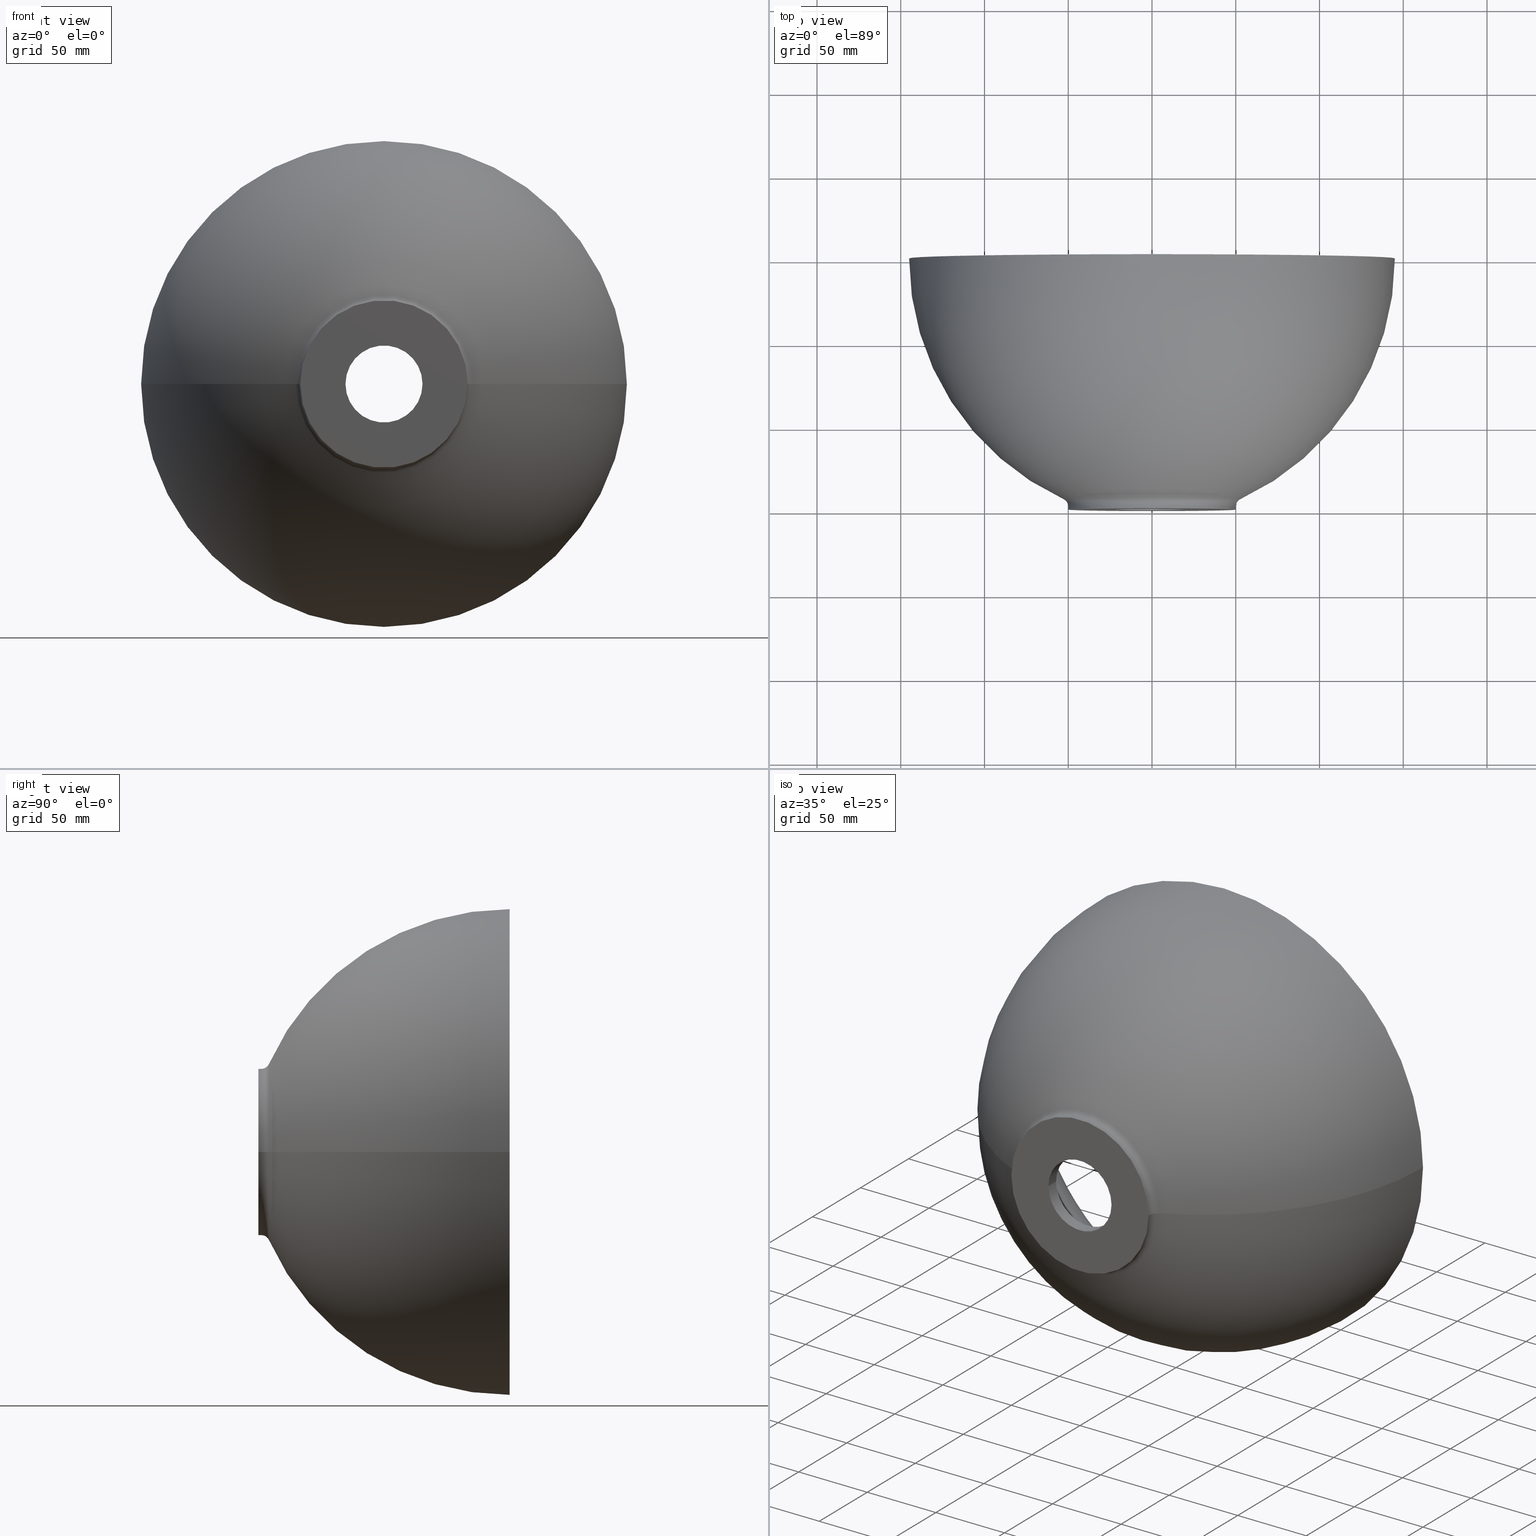
[diagram: canonical four-view strip — front | top / right | iso, engineering-drawing reading convention]
A machine part, canonical four-view strip (front | top / right | iso — engineering-drawing reading convention). The complete STEP part file that produces these views, byte-faithful:
ISO-10303-21;
HEADER;
FILE_DESCRIPTION (( 'STEP AP214' ),
    '1' );
FILE_NAME ('D781-SO.STEP',
    '2018-06-29T09:17:41',
    ( '' ),
    ( '' ),
    'SwSTEP 2.0',
    'SolidWorks 2017',
    '' );
FILE_SCHEMA (( 'AUTOMOTIVE_DESIGN' ));
ENDSEC;

DATA;
#1 = CIRCLE ( 'NONE', #90, 37.30104311104392400 ) ;
#2 = CARTESIAN_POINT ( 'NONE',  ( -52.91129032258071900, 6.303157817668902000, 0.0000000000000000000 ) ) ;
#3 = CARTESIAN_POINT ( 'NONE',  ( 0.0000000000000000000, 126.3523706291405700, 0.0000000000000000000 ) ) ;
#4 = CARTESIAN_POINT ( 'NONE',  ( 0.0000000000000000000, 125.6151732610876800, 0.0000000000000000000 ) ) ;
#5 = CIRCLE ( 'NONE', #396, 128.5377298256254300 ) ;
#6 = DIRECTION ( 'NONE',  ( 0.0000000000000000000, -0.0000000000000000000, -1.000000000000000000 ) ) ;
#7 = DIRECTION ( 'NONE',  ( 0.0000000000000000000, -0.0000000000000000000, -1.000000000000000000 ) ) ;
#8 = DIRECTION ( 'NONE',  ( -1.000000000000000000, -2.159332956423159800E-016, 0.0000000000000000000 ) ) ;
#9 = CARTESIAN_POINT ( 'NONE',  ( 1.387778780781445700E-014, 0.0000000000000000000, 0.0000000000000000000 ) ) ;
#10 = DIRECTION ( 'NONE',  ( -1.104785946437366900E-016, 1.000000000000000000, -0.0000000000000000000 ) ) ;
#11 = DIRECTION ( 'NONE',  ( -1.104785946437366900E-016, 1.000000000000000000, -0.0000000000000000000 ) ) ;
#12 = AXIS2_PLACEMENT_3D ( 'NONE', #9, #66, #36 ) ;
#13 = PRODUCT ( 'D781-SO', 'D781-SO', '', ( #131 ) ) ;
#14 = DIRECTION ( 'NONE',  ( -1.104785946437366900E-016, 1.000000000000000000, -0.0000000000000000000 ) ) ;
#15 = CARTESIAN_POINT ( 'NONE',  ( -128.5377298256254300, 129.9999999999999700, 0.0000000000000000000 ) ) ;
#16 = VERTEX_POINT ( 'NONE', #112 ) ;
#17 = DIRECTION ( 'NONE',  ( -1.224646799147353200E-016, -1.352972573047500600E-032, 1.000000000000000000 ) ) ;
#18 = CIRCLE ( 'NONE', #93, 25.07832101446677700 ) ;
#19 = EDGE_CURVE ( 'NONE', #139, #449, #87, .T. ) ;
#20 = ORIENTED_EDGE ( 'NONE', *, *, #257, .F. ) ;
#21 = EDGE_CURVE ( 'NONE', #50, #16, #403, .T. ) ;
#22 = DIRECTION ( 'NONE',  ( 1.000000000000000000, 1.104785946437366900E-016, 0.0000000000000000000 ) ) ;
#23 = EDGE_CURVE ( 'NONE', #300, #193, #325, .T. ) ;
#24 = CIRCLE ( 'NONE', #335, 23.00000000000003600 ) ;
#25 = ORIENTED_EDGE ( 'NONE', *, *, #341, .T. ) ;
#26 = CARTESIAN_POINT ( 'NONE',  ( -2.694001388746044600E-015, 150.0000000000000000, 0.0000000000000000000 ) ) ;
#27 = EDGE_LOOP ( 'NONE', ( #204, #353, #210, #334 ) ) ;
#28 = EDGE_CURVE ( 'NONE', #122, #203, #45, .T. ) ;
#29 = ADVANCED_FACE ( 'NONE', ( #217 ), #306, .T. ) ;
#30 = DIRECTION ( 'NONE',  ( -1.104785946437366900E-016, 1.000000000000000000, -0.0000000000000000000 ) ) ;
#31 = CARTESIAN_POINT ( 'NONE',  ( -13.15789473684206400, 150.0000000000000000, -1.611377367299143200E-015 ) ) ;
#32 = AXIS2_PLACEMENT_3D ( 'NONE', #360, #187, #303 ) ;
#33 = DIRECTION ( 'NONE',  ( -1.000000000000000000, 0.0000000000000000000, 0.0000000000000000000 ) ) ;
#34 = DIRECTION ( 'NONE',  ( -1.000000000000000000, -1.104785946437366900E-016, 0.0000000000000000000 ) ) ;
#35 = CONICAL_SURFACE ( 'NONE', #174, 23.00000000000003600, 0.8726646259971557700 ) ;
#36 = DIRECTION ( 'NONE',  ( -1.000000000000000000, -1.104785946437366900E-016, 0.0000000000000000000 ) ) ;
#37 = DIRECTION ( 'NONE',  ( -1.104785946437366900E-016, 1.000000000000000000, -0.0000000000000000000 ) ) ;
#38 = DIRECTION ( 'NONE',  ( -1.104785946437366900E-016, 1.000000000000000000, -0.0000000000000000000 ) ) ;
#39 = EDGE_CURVE ( 'NONE', #300, #186, #200, .T. ) ;
#40 = DIRECTION ( 'NONE',  ( -1.224646799147353200E-016, -1.352972573047500600E-032, 1.000000000000000000 ) ) ;
#41 = FACE_OUTER_BOUND ( 'NONE', #27, .T. ) ;
#42 = ORIENTED_EDGE ( 'NONE', *, *, #434, .F. ) ;
#43 = ORIENTED_EDGE ( 'NONE', *, *, #311, .T. ) ;
#44 = AXIS2_PLACEMENT_3D ( 'NONE', #397, #370, #337 ) ;
#45 = CIRCLE ( 'NONE', #197, 128.5377298256254300 ) ;
#46 = CARTESIAN_POINT ( 'NONE',  ( 50.00000000000004300, 1.760329196264057000, 6.123233995736769200E-015 ) ) ;
#47 = CIRCLE ( 'NONE', #12, 50.00000000000000000 ) ;
#48 = TOROIDAL_SURFACE ( 'NONE', #436, -13.15789473684206000, 158.1578947368420800 ) ;
#49 = ORIENTED_EDGE ( 'NONE', *, *, #169, .T. ) ;
#50 = VERTEX_POINT ( 'NONE', #179 ) ;
#51 = ORIENTED_EDGE ( 'NONE', *, *, #445, .T. ) ;
#52 = ADVANCED_FACE ( 'NONE', ( #162 ), #247, .F. ) ;
#53 = EDGE_CURVE ( 'NONE', #246, #278, #406, .T. ) ;
#54 = CIRCLE ( 'NONE', #439, 52.91129032258073300 ) ;
#55 = DIRECTION ( 'NONE',  ( -1.000000000000000000, -1.104785946437366800E-016, 0.0000000000000000000 ) ) ;
#56 = COLOUR_RGB ( '',1.000000000000000000, 1.000000000000000000, 1.000000000000000000 ) ;
#57 = AXIS2_PLACEMENT_3D ( 'NONE', #390, #407, #383 ) ;
#58 = DIRECTION ( 'NONE',  ( -1.000000000000000000, -1.104785946437366800E-016, 0.0000000000000000000 ) ) ;
#59 = EDGE_LOOP ( 'NONE', ( #264, #384, #130, #295 ) ) ;
#60 = CARTESIAN_POINT ( 'NONE',  ( -50.00000000000001400, 125.6151732610876800, 0.0000000000000000000 ) ) ;
#61 = DIRECTION ( 'NONE',  ( -1.104785946437366900E-016, 1.000000000000000000, -0.0000000000000000000 ) ) ;
#62 = DIRECTION ( 'NONE',  ( -1.000000000000000000, -1.147492742834831600E-016, 0.0000000000000000000 ) ) ;
#63 = ADVANCED_FACE ( 'NONE', ( #427 ), #154, .F. ) ;
#64 = CARTESIAN_POINT ( 'NONE',  ( -7.504765230840313900, 150.0000000000000000, -9.190686718300936100E-016 ) ) ;
#65 = CARTESIAN_POINT ( 'NONE',  ( -2.602085213965210600E-015, 150.0000000000000000, 0.0000000000000000000 ) ) ;
#66 = DIRECTION ( 'NONE',  ( -1.104785946437366900E-016, 1.000000000000000000, -0.0000000000000000000 ) ) ;
#67 = DIRECTION ( 'NONE',  ( -1.000000000000000000, 0.0000000000000000000, 0.0000000000000000000 ) ) ;
#68 = VECTOR ( 'NONE', #147, 1000.000000000000000 ) ;
#69 = ORIENTED_EDGE ( 'NONE', *, *, #254, .T. ) ;
#70 = EDGE_CURVE ( 'NONE', #124, #108, #1, .T. ) ;
#71 = ORIENTED_EDGE ( 'NONE', *, *, #169, .F. ) ;
#72 = DIRECTION ( 'NONE',  ( -1.000000000000000000, -1.104785946437366900E-016, 0.0000000000000000000 ) ) ;
#73 = MECHANICAL_DESIGN_GEOMETRIC_PRESENTATION_REPRESENTATION (  '', ( #365 ), #224 ) ;
#74 = DIRECTION ( 'NONE',  ( -1.000000000000000000, 0.0000000000000000000, 0.0000000000000000000 ) ) ;
#75 = CARTESIAN_POINT ( 'NONE',  ( 50.00000000000001400, 125.6151732610876800, 6.123233995736767700E-015 ) ) ;
#76 = DIRECTION ( 'NONE',  ( -1.000000000000000000, -1.104785946437366800E-016, 0.0000000000000000000 ) ) ;
#77 = CIRCLE ( 'NONE', #129, 50.00000000000000000 ) ;
#78 = FILL_AREA_STYLE_COLOUR ( '', #132 ) ;
#79 = CARTESIAN_POINT ( 'NONE',  ( 0.0000000000000000000, 125.6151732610876800, 0.0000000000000000000 ) ) ;
#80 = AXIS2_PLACEMENT_3D ( 'NONE', #151, #171, #145 ) ;
#81 = SHAPE_DEFINITION_REPRESENTATION ( #261, #220 ) ;
#82 = CARTESIAN_POINT ( 'NONE',  ( -23.00000000000001400, -1.153895334038977400E-015, 0.0000000000000000000 ) ) ;
#83 = AXIS2_PLACEMENT_3D ( 'NONE', #398, #267, #33 ) ;
#84 = DIRECTION ( 'NONE',  ( -1.104785946437366900E-016, 1.000000000000000000, -0.0000000000000000000 ) ) ;
#85 = EDGE_CURVE ( 'NONE', #186, #139, #153, .T. ) ;
#86 = FACE_OUTER_BOUND ( 'NONE', #279, .T. ) ;
#87 = CIRCLE ( 'NONE', #329, 145.0000000000000000 ) ;
#88 =( NAMED_UNIT ( * ) SI_UNIT ( $, .STERADIAN. ) SOLID_ANGLE_UNIT ( ) );
#89 = DIRECTION ( 'NONE',  ( 0.7660444431189721300, 0.6427876096865463600, 9.381338752702660500E-017 ) ) ;
#90 = AXIS2_PLACEMENT_3D ( 'NONE', #226, #211, #395 ) ;
#91 = DIRECTION ( 'NONE',  ( 1.104785946437366900E-016, -1.000000000000000000, 0.0000000000000000000 ) ) ;
#92 = ORIENTED_EDGE ( 'NONE', *, *, #19, .F. ) ;
#93 = AXIS2_PLACEMENT_3D ( 'NONE', #163, #161, #157 ) ;
#94 = FACE_BOUND ( 'NONE', #240, .T. ) ;
#95 = VECTOR ( 'NONE', #392, 1000.000000000000100 ) ;
#96 = VERTEX_POINT ( 'NONE', #332 ) ;
#97 = CYLINDRICAL_SURFACE ( 'NONE', #323, 23.00000000000003200 ) ;
#98 =( LENGTH_UNIT ( ) NAMED_UNIT ( * ) SI_UNIT ( .MILLI., .METRE. ) );
#99 = AXIS2_PLACEMENT_3D ( 'NONE', #3, #61, #148 ) ;
#100 = ORIENTED_EDGE ( 'NONE', *, *, #118, .T. ) ;
#101 = CIRCLE ( 'NONE', #457, 23.00000000000002800 ) ;
#102 = CARTESIAN_POINT ( 'NONE',  ( 1.387778780781445700E-014, 0.0000000000000000000, 0.0000000000000000000 ) ) ;
#103 = EDGE_CURVE ( 'NONE', #108, #122, #280, .T. ) ;
#104 = ADVANCED_FACE ( 'NONE', ( #231 ), #35, .F. ) ;
#105 = DIRECTION ( 'NONE',  ( -1.104785946437366900E-016, 1.000000000000000000, -0.0000000000000000000 ) ) ;
#106 = DIRECTION ( 'NONE',  ( -1.104785946437366900E-016, 1.000000000000000000, -0.0000000000000000000 ) ) ;
#107 = VECTOR ( 'NONE', #11, 1000.000000000000000 ) ;
#108 = VERTEX_POINT ( 'NONE', #191 ) ;
#109 = PRODUCT_CONTEXT ( 'NONE', #177, 'mechanical' ) ;
#110 = ORIENTED_EDGE ( 'NONE', *, *, #21, .T. ) ;
#111 = CARTESIAN_POINT ( 'NONE',  ( -23.00000000000002100, 7.999999999999991100, 0.0000000000000000000 ) ) ;
#112 = CARTESIAN_POINT ( 'NONE',  ( 23.00000000000005000, 7.999999999999994700, 2.816687638038917100E-015 ) ) ;
#113 = AXIS2_PLACEMENT_3D ( 'NONE', #82, #91, #22 ) ;
#114 = CARTESIAN_POINT ( 'NONE',  ( 1.166821591494773100E-014, 19.99999999992752100, 0.0000000000000000000 ) ) ;
#115 = FACE_OUTER_BOUND ( 'NONE', #412, .T. ) ;
#116 = DIRECTION ( 'NONE',  ( -1.104785946437366900E-016, 1.000000000000000000, -0.0000000000000000000 ) ) ;
#117 = DIRECTION ( 'NONE',  ( -1.104785946437366900E-016, 1.000000000000000000, -0.0000000000000000000 ) ) ;
#118 = EDGE_CURVE ( 'NONE', #50, #246, #350, .T. ) ;
#119 = DIRECTION ( 'NONE',  ( -1.000000000000000000, -1.104785946437366900E-016, 0.0000000000000000000 ) ) ;
#120 = FILL_AREA_STYLE_COLOUR ( '', #56 ) ;
#121 = TOROIDAL_SURFACE ( 'NONE', #401, -7.504765230840311200, 137.5047652308402900 ) ;
#122 = VERTEX_POINT ( 'NONE', #15 ) ;
#123 = EDGE_LOOP ( 'NONE', ( #386, #175, #49, #391 ) ) ;
#124 = VERTEX_POINT ( 'NONE', #230 ) ;
#125 = CARTESIAN_POINT ( 'NONE',  ( -4.844294958713144800E-016, 130.0000000000000000, 0.0000000000000000000 ) ) ;
#126 = ORIENTED_EDGE ( 'NONE', *, *, #371, .T. ) ;
#127 = APPLICATION_PROTOCOL_DEFINITION ( 'draft international standard', 'automotive_design', 1998, #363 ) ;
#128 = APPLICATION_CONTEXT ( 'automotive_design' ) ;
#129 = AXIS2_PLACEMENT_3D ( 'NONE', #252, #117, #34 ) ;
#130 = ORIENTED_EDGE ( 'NONE', *, *, #378, .F. ) ;
#131 = PRODUCT_CONTEXT ( 'NONE', #363, 'mechanical' ) ;
#132 = COLOUR_RGB ( '',1.000000000000000000, 1.000000000000000000, 1.000000000000000000 ) ;
#133 = ORIENTED_EDGE ( 'NONE', *, *, #70, .F. ) ;
#134 = APPLICATION_PROTOCOL_DEFINITION ( 'draft international standard', 'automotive_design', 1998, #128 ) ;
#135 = AXIS2_PLACEMENT_3D ( 'NONE', #196, #455, #183 ) ;
#136 = DIRECTION ( 'NONE',  ( -1.104785946437366900E-016, 1.000000000000000000, -0.0000000000000000000 ) ) ;
#137 = CIRCLE ( 'NONE', #448, 137.5047652308402900 ) ;
#138 = EDGE_LOOP ( 'NONE', ( #180, #331, #423, #314 ) ) ;
#139 = VERTEX_POINT ( 'NONE', #358 ) ;
#140 = CARTESIAN_POINT ( 'NONE',  ( 0.0000000000000000000, 126.3523706291405700, 0.0000000000000000000 ) ) ;
#141 = ADVANCED_FACE ( 'NONE', ( #359 ), #271, .T. ) ;
#142 = DIRECTION ( 'NONE',  ( -1.104785946437366900E-016, 1.000000000000000000, -0.0000000000000000000 ) ) ;
#143 = TOROIDAL_SURFACE ( 'NONE', #422, -7.504765230840311200, 137.5047652308402900 ) ;
#144 = AXIS2_PLACEMENT_3D ( 'NONE', #272, #302, #119 ) ;
#145 = DIRECTION ( 'NONE',  ( -1.000000000000000000, -7.542275982507844800E-017, 0.0000000000000000000 ) ) ;
#146 = EDGE_LOOP ( 'NONE', ( #387, #262, #330, #71 ) ) ;
#147 = DIRECTION ( 'NONE',  ( -1.104785946437366900E-016, 1.000000000000000000, -0.0000000000000000000 ) ) ;
#148 = DIRECTION ( 'NONE',  ( -1.000000000000000000, -1.104785946437366900E-016, 0.0000000000000000000 ) ) ;
#149 = CARTESIAN_POINT ( 'NONE',  ( 1.368330911210086600E-014, 1.760329196264051700, 0.0000000000000000000 ) ) ;
#150 = PRODUCT_DEFINITION_CONTEXT ( 'detailed design', #128, 'design' ) ;
#151 = CARTESIAN_POINT ( 'NONE',  ( 1.299395905066456400E-014, 7.999999999999992900, 0.0000000000000000000 ) ) ;
#152 = DIRECTION ( 'NONE',  ( -1.000000000000000000, -1.104785946437366900E-016, 0.0000000000000000000 ) ) ;
#153 = CIRCLE ( 'NONE', #44, 158.1578947368420800 ) ;
#154 = CYLINDRICAL_SURFACE ( 'NONE', #276, 23.00000000000003200 ) ;
#155 = DIRECTION ( 'NONE',  ( -1.104785946437366900E-016, 1.000000000000000000, -0.0000000000000000000 ) ) ;
#156 = CARTESIAN_POINT ( 'NONE',  ( 23.00000000000005000, 7.999999999999994700, 2.816687638038916700E-015 ) ) ;
#157 = DIRECTION ( 'NONE',  ( 1.000000000000000000, 0.0000000000000000000, 1.224646799147352000E-016 ) ) ;
#158 = DIRECTION ( 'NONE',  ( -1.104785946437366900E-016, 1.000000000000000000, -0.0000000000000000000 ) ) ;
#159 = CIRCLE ( 'NONE', #57, 145.0000000000000000 ) ;
#160 = VERTEX_POINT ( 'NONE', #452 ) ;
#161 = DIRECTION ( 'NONE',  ( -1.224646799147353200E-016, -1.352972573047500600E-032, 1.000000000000000000 ) ) ;
#162 = FACE_OUTER_BOUND ( 'NONE', #123, .T. ) ;
#163 = CARTESIAN_POINT ( 'NONE',  ( 153.3493598582832400, 126.3523706291405900, 1.877988027017421900E-014 ) ) ;
#164 = AXIS2_PLACEMENT_3D ( 'NONE', #216, #158, #369 ) ;
#165 = AXIS2_PLACEMENT_3D ( 'NONE', #355, #209, #454 ) ;
#166 = AXIS2_PLACEMENT_3D ( 'NONE', #223, #6, #421 ) ;
#167 = ORIENTED_EDGE ( 'NONE', *, *, #319, .F. ) ;
#168 = ORIENTED_EDGE ( 'NONE', *, *, #103, .T. ) ;
#169 = EDGE_CURVE ( 'NONE', #278, #108, #379, .T. ) ;
#170 = PRODUCT_DEFINITION_CONTEXT ( 'detailed design', #260, 'design' ) ;
#171 = DIRECTION ( 'NONE',  ( -1.104785946437366900E-016, 1.000000000000000000, -0.0000000000000000000 ) ) ;
#172 = CARTESIAN_POINT ( 'NONE',  ( 1.299395905066456400E-014, 7.999999999999992900, 0.0000000000000000000 ) ) ;
#173 = ORIENTED_EDGE ( 'NONE', *, *, #202, .T. ) ;
#174 = AXIS2_PLACEMENT_3D ( 'NONE', #286, #380, #367 ) ;
#175 = ORIENTED_EDGE ( 'NONE', *, *, #445, .F. ) ;
#176 = TOROIDAL_SURFACE ( 'NONE', #440, -13.15789473684206000, 158.1578947368420800 ) ;
#177 = APPLICATION_CONTEXT ( 'automotive_design' ) ;
#178 = ADVANCED_FACE ( 'NONE', ( #348 ), #242, .F. ) ;
#179 = CARTESIAN_POINT ( 'NONE',  ( 23.00000000000004300, 2.541007676805946200E-015, 2.816687638038916300E-015 ) ) ;
#180 = ORIENTED_EDGE ( 'NONE', *, *, #182, .F. ) ;
#181 = CARTESIAN_POINT ( 'NONE',  ( 0.0000000000000000000, 125.6151732610876800, 0.0000000000000000000 ) ) ;
#182 = EDGE_CURVE ( 'NONE', #300, #449, #428, .T. ) ;
#183 = DIRECTION ( 'NONE',  ( -1.000000000000000000, -7.542275982507844800E-017, 0.0000000000000000000 ) ) ;
#184 = CARTESIAN_POINT ( 'NONE',  ( -4.844294958713144800E-016, 130.0000000000000000, 0.0000000000000000000 ) ) ;
#185 = ORIENTED_EDGE ( 'NONE', *, *, #430, .T. ) ;
#186 = VERTEX_POINT ( 'NONE', #2 ) ;
#187 = DIRECTION ( 'NONE',  ( -1.224646799147353200E-016, -1.352972573047500600E-032, 1.000000000000000000 ) ) ;
#188 = DIRECTION ( 'NONE',  ( -1.000000000000000000, -1.914177628664062900E-016, 0.0000000000000000000 ) ) ;
#189 = PRODUCT_RELATED_PRODUCT_CATEGORY ( 'part', '', ( #13 ) ) ;
#190 = EDGE_CURVE ( 'NONE', #108, #124, #250, .T. ) ;
#191 = CARTESIAN_POINT ( 'NONE',  ( -37.30104311104390300, 19.99999999992751800, 0.0000000000000000000 ) ) ;
#192 = SURFACE_STYLE_FILL_AREA ( #394 ) ;
#193 = VERTEX_POINT ( 'NONE', #46 ) ;
#194 = CARTESIAN_POINT ( 'NONE',  ( 1.387778780781445700E-014, 1.760329196264053300, 0.0000000000000000000 ) ) ;
#195 = EDGE_LOOP ( 'NONE', ( #343, #313, #399, #426 ) ) ;
#196 = CARTESIAN_POINT ( 'NONE',  ( 1.299395905066456400E-014, 7.999999999999992900, 0.0000000000000000000 ) ) ;
#197 = AXIS2_PLACEMENT_3D ( 'NONE', #184, #37, #8 ) ;
#198 = DIRECTION ( 'NONE',  ( 0.0000000000000000000, 0.0000000000000000000, 1.000000000000000000 ) ) ;
#199 = PRODUCT_DEFINITION_FORMATION_WITH_SPECIFIED_SOURCE ( 'ANY', '', #13, .NOT_KNOWN. ) ;
#200 = CIRCLE ( 'NONE', #164, 52.91129032258073300 ) ;
#201 = PRODUCT_RELATED_PRODUCT_CATEGORY ( 'part', '', ( #324 ) ) ;
#202 = EDGE_CURVE ( 'NONE', #139, #122, #336, .T. ) ;
#203 = VERTEX_POINT ( 'NONE', #419 ) ;
#204 = ORIENTED_EDGE ( 'NONE', *, *, #19, .T. ) ;
#205 = PLANE ( 'NONE',  #113 ) ;
#206 = PRODUCT_DEFINITION_FORMATION_WITH_SPECIFIED_SOURCE ( 'ANY', '', #324, .NOT_KNOWN. ) ;
#207 = AXIS2_PLACEMENT_3D ( 'NONE', #31, #17, #214 ) ;
#208 = EDGE_LOOP ( 'NONE', ( #263, #69, #126, #42 ) ) ;
#209 = DIRECTION ( 'NONE',  ( -1.104785946437366900E-016, 1.000000000000000000, -0.0000000000000000000 ) ) ;
#210 = ORIENTED_EDGE ( 'NONE', *, *, #28, .F. ) ;
#211 = DIRECTION ( 'NONE',  ( -1.104785946437366900E-016, 1.000000000000000000, -0.0000000000000000000 ) ) ;
#212 = ORIENTED_EDGE ( 'NONE', *, *, #257, .T. ) ;
#213 = EDGE_CURVE ( 'NONE', #266, #96, #77, .T. ) ;
#214 = DIRECTION ( 'NONE',  ( 1.000000000000000000, 0.0000000000000000000, 1.224646799147353200E-016 ) ) ;
#215 = CARTESIAN_POINT ( 'NONE',  ( 145.0000000000000000, 150.0000000000000300, 1.775737858763661900E-014 ) ) ;
#216 = CARTESIAN_POINT ( 'NONE',  ( 1.318142379030071500E-014, 6.303157817668908300, 0.0000000000000000000 ) ) ;
#217 = FACE_OUTER_BOUND ( 'NONE', #283, .T. ) ;
#218 = ORIENTED_EDGE ( 'NONE', *, *, #437, .T. ) ;
#219 = ADVANCED_FACE ( 'NONE', ( #429 ), #176, .T. ) ;
#220 = ADVANCED_BREP_SHAPE_REPRESENTATION ( 'D781-SO', ( #388, #248 ), #342 ) ;
#221 = EDGE_CURVE ( 'NONE', #186, #160, #222, .T. ) ;
#222 = CIRCLE ( 'NONE', #282, 5.000000000000004400 ) ;
#223 = CARTESIAN_POINT ( 'NONE',  ( 7.504765230840308600, 150.0000000000000000, 0.0000000000000000000 ) ) ;
#224 =( GEOMETRIC_REPRESENTATION_CONTEXT ( 3 ) GLOBAL_UNCERTAINTY_ASSIGNED_CONTEXT ( ( #373 ) ) GLOBAL_UNIT_ASSIGNED_CONTEXT ( ( #416, #447, #441 ) ) REPRESENTATION_CONTEXT ( 'NONE', 'WORKASPACE' ) );
#225 = DIRECTION ( 'NONE',  ( -1.104785946437366900E-016, 1.000000000000000000, -0.0000000000000000000 ) ) ;
#226 = CARTESIAN_POINT ( 'NONE',  ( 1.166821591494773100E-014, 19.99999999992752100, 0.0000000000000000000 ) ) ;
#227 = CARTESIAN_POINT ( 'NONE',  ( -23.00000000000001400, -2.541007676805946600E-015, 0.0000000000000000000 ) ) ;
#228 = DIRECTION ( 'NONE',  ( -1.000000000000000000, -2.159332956423159800E-016, 0.0000000000000000000 ) ) ;
#229 = ORIENTED_EDGE ( 'NONE', *, *, #341, .F. ) ;
#230 = CARTESIAN_POINT ( 'NONE',  ( 37.30104311104393800, 19.99999999992752500, 4.568060305079736700E-015 ) ) ;
#231 = FACE_OUTER_BOUND ( 'NONE', #146, .T. ) ;
#232 = DIRECTION ( 'NONE',  ( -1.000000000000000000, -1.104785946437366800E-016, 0.0000000000000000000 ) ) ;
#233 = DIRECTION ( 'NONE',  ( 1.000000000000000000, 0.0000000000000000000, 0.0000000000000000000 ) ) ;
#234 = FACE_OUTER_BOUND ( 'NONE', #312, .T. ) ;
#235 = EDGE_CURVE ( 'NONE', #16, #124, #258, .T. ) ;
#236 = PRODUCT_DEFINITION ( 'UNKNOWN', '', #206, #150 ) ;
#237 = DIRECTION ( 'NONE',  ( -1.104785946437366900E-016, 1.000000000000000000, -0.0000000000000000000 ) ) ;
#238 = ORIENTED_EDGE ( 'NONE', *, *, #85, .F. ) ;
#239 = EDGE_LOOP ( 'NONE', ( #328, #304, #444, #317 ) ) ;
#240 = EDGE_LOOP ( 'NONE', ( #25, #100 ) ) ;
#241 = ORIENTED_EDGE ( 'NONE', *, *, #254, .F. ) ;
#242 = TOROIDAL_SURFACE ( 'NONE', #144, 55.00000000000002800, 5.000000000000002700 ) ;
#243 = ADVANCED_FACE ( 'NONE', ( #409 ), #346, .T. ) ;
#244 = FILL_AREA_STYLE ('',( #120 ) ) ;
#245 = AXIS2_PLACEMENT_3D ( 'NONE', #79, #237, #74 ) ;
#246 = VERTEX_POINT ( 'NONE', #227 ) ;
#247 = CONICAL_SURFACE ( 'NONE', #135, 23.00000000000003600, 0.8726646259971557700 ) ;
#248 = AXIS2_PLACEMENT_3D ( 'NONE', #296, #309, #320 ) ;
#249 = PRESENTATION_STYLE_ASSIGNMENT (( #297 ) ) ;
#250 = CIRCLE ( 'NONE', #375, 37.30104311104392400 ) ;
#251 = DIRECTION ( 'NONE',  ( -1.000000000000000000, -7.542275982507844800E-017, 0.0000000000000000000 ) ) ;
#252 = CARTESIAN_POINT ( 'NONE',  ( 1.387778780781445700E-014, 0.0000000000000000000, 0.0000000000000000000 ) ) ;
#253 = DIRECTION ( 'NONE',  ( -1.104785946437366900E-016, 1.000000000000000000, -0.0000000000000000000 ) ) ;
#254 = EDGE_CURVE ( 'NONE', #96, #266, #47, .T. ) ;
#255 = FACE_OUTER_BOUND ( 'NONE', #195, .T. ) ;
#256 = AXIS2_PLACEMENT_3D ( 'NONE', #381, #198, #233 ) ;
#257 = EDGE_CURVE ( 'NONE', #203, #122, #5, .T. ) ;
#258 = LINE ( 'NONE', #156, #349 ) ;
#259 = CARTESIAN_POINT ( 'NONE',  ( 1.387778780781445700E-014, 0.0000000000000000000, 0.0000000000000000000 ) ) ;
#260 = APPLICATION_CONTEXT ( 'automotive_design' ) ;
#261 = PRODUCT_DEFINITION_SHAPE ( 'NONE', 'NONE',  #275 ) ;
#262 = ORIENTED_EDGE ( 'NONE', *, *, #235, .T. ) ;
#263 = ORIENTED_EDGE ( 'NONE', *, *, #362, .F. ) ;
#264 = ORIENTED_EDGE ( 'NONE', *, *, #213, .T. ) ;
#265 = DIRECTION ( 'NONE',  ( -1.000000000000000000, -1.104785946437366800E-016, 0.0000000000000000000 ) ) ;
#266 = VERTEX_POINT ( 'NONE', #339 ) ;
#267 = DIRECTION ( 'NONE',  ( 0.0000000000000000000, -0.0000000000000000000, -1.000000000000000000 ) ) ;
#268 = DIRECTION ( 'NONE',  ( -1.104785946437366900E-016, 1.000000000000000000, -0.0000000000000000000 ) ) ;
#269 = CARTESIAN_POINT ( 'NONE',  ( 23.00000000000003200, 125.6151732610876800, 2.816687638038916300E-015 ) ) ;
#270 = CIRCLE ( 'NONE', #410, 50.00000000000002100 ) ;
#271 = CYLINDRICAL_SURFACE ( 'NONE', #308, 50.00000000000001400 ) ;
#272 = CARTESIAN_POINT ( 'NONE',  ( 1.387778780781445700E-014, 1.760329196264053300, 0.0000000000000000000 ) ) ;
#273 = PRODUCT_DEFINITION_SHAPE ( 'NONE', 'NONE',  #236 ) ;
#274 = EDGE_CURVE ( 'NONE', #124, #203, #137, .T. ) ;
#275 = PRODUCT_DEFINITION ( 'UNKNOWN', '', #199, #170 ) ;
#276 = AXIS2_PLACEMENT_3D ( 'NONE', #4, #290, #333 ) ;
#277 = LINE ( 'NONE', #75, #68 ) ;
#278 = VERTEX_POINT ( 'NONE', #111 ) ;
#279 = EDGE_LOOP ( 'NONE', ( #185, #418, #92, #238 ) ) ;
#280 = CIRCLE ( 'NONE', #166, 137.5047652308402900 ) ;
#281 = CARTESIAN_POINT ( 'NONE',  ( -3.469446951953614200E-015, 150.0000000000000000, 0.0000000000000000000 ) ) ;
#282 = AXIS2_PLACEMENT_3D ( 'NONE', #344, #7, #361 ) ;
#283 = EDGE_LOOP ( 'NONE', ( #167, #218, #173, #20 ) ) ;
#284 = EDGE_LOOP ( 'NONE', ( #133, #289, #212, #456 ) ) ;
#285 =( GEOMETRIC_REPRESENTATION_CONTEXT ( 3 ) GLOBAL_UNCERTAINTY_ASSIGNED_CONTEXT ( ( #292 ) ) GLOBAL_UNIT_ASSIGNED_CONTEXT ( ( #293, #291, #288 ) ) REPRESENTATION_CONTEXT ( 'NONE', 'WORKASPACE' ) );
#286 = CARTESIAN_POINT ( 'NONE',  ( 1.299395905066456400E-014, 7.999999999999992900, 0.0000000000000000000 ) ) ;
#287 = TOROIDAL_SURFACE ( 'NONE', #374, 55.00000000000002800, 5.000000000000002700 ) ;
#288 =( NAMED_UNIT ( * ) SI_UNIT ( $, .STERADIAN. ) SOLID_ANGLE_UNIT ( ) );
#289 = ORIENTED_EDGE ( 'NONE', *, *, #274, .T. ) ;
#290 = DIRECTION ( 'NONE',  ( -1.104785946437366900E-016, 1.000000000000000000, -0.0000000000000000000 ) ) ;
#291 =( NAMED_UNIT ( * ) PLANE_ANGLE_UNIT ( ) SI_UNIT ( $, .RADIAN. ) );
#292 = UNCERTAINTY_MEASURE_WITH_UNIT (LENGTH_MEASURE( 1.000000000000000100E-005 ), #293, 'distance_accuracy_value', 'NONE');
#293 =( LENGTH_UNIT ( ) NAMED_UNIT ( * ) SI_UNIT ( .MILLI., .METRE. ) );
#294 = TOROIDAL_SURFACE ( 'NONE', #351, 153.3493598582832400, 25.07832101446676300 ) ;
#295 = ORIENTED_EDGE ( 'NONE', *, *, #371, .F. ) ;
#296 = CARTESIAN_POINT ( 'NONE',  ( 0.0000000000000000000, 0.0000000000000000000, 0.0000000000000000000 ) ) ;
#297 = SURFACE_STYLE_USAGE ( .BOTH. , #298 ) ;
#298 = SURFACE_SIDE_STYLE ('',( #446 ) ) ;
#299 = MECHANICAL_DESIGN_GEOMETRIC_PRESENTATION_REPRESENTATION (  '', ( #310 ), #285 ) ;
#300 = VERTEX_POINT ( 'NONE', #385 ) ;
#301 = ORIENTED_EDGE ( 'NONE', *, *, #190, .F. ) ;
#302 = DIRECTION ( 'NONE',  ( -1.104785946437366900E-016, 1.000000000000000000, -0.0000000000000000000 ) ) ;
#303 = DIRECTION ( 'NONE',  ( 1.000000000000000000, 0.0000000000000000000, 1.224646799147352500E-016 ) ) ;
#304 = ORIENTED_EDGE ( 'NONE', *, *, #430, .F. ) ;
#305 = APPLICATION_PROTOCOL_DEFINITION ( 'draft international standard', 'automotive_design', 1998, #177 ) ;
#306 = TOROIDAL_SURFACE ( 'NONE', #99, 153.3493598582832400, 25.07832101446676300 ) ;
#307 = PRESENTATION_LAYER_ASSIGNMENT (  '', '', ( #310 ) ) ;
#308 = AXIS2_PLACEMENT_3D ( 'NONE', #181, #431, #451 ) ;
#309 = DIRECTION ( 'NONE',  ( 0.0000000000000000000, 0.0000000000000000000, 1.000000000000000000 ) ) ;
#310 = STYLED_ITEM ( 'NONE', ( #249 ), #220 ) ;
#311 = EDGE_CURVE ( 'NONE', #16, #278, #376, .T. ) ;
#312 = EDGE_LOOP ( 'NONE', ( #415, #241 ) ) ;
#313 = ORIENTED_EDGE ( 'NONE', *, *, #23, .T. ) ;
#314 = ORIENTED_EDGE ( 'NONE', *, *, #437, .F. ) ;
#315 = FACE_OUTER_BOUND ( 'NONE', #284, .T. ) ;
#316 =( NAMED_UNIT ( * ) PLANE_ANGLE_UNIT ( ) SI_UNIT ( $, .RADIAN. ) );
#317 = ORIENTED_EDGE ( 'NONE', *, *, #378, .T. ) ;
#318 = ADVANCED_FACE ( 'NONE', ( #94, #234 ), #205, .T. ) ;
#319 = EDGE_CURVE ( 'NONE', #449, #203, #18, .T. ) ;
#320 = DIRECTION ( 'NONE',  ( 1.000000000000000000, 0.0000000000000000000, 0.0000000000000000000 ) ) ;
#321 = EDGE_LOOP ( 'NONE', ( #372, #301, #168, #400 ) ) ;
#322 = CARTESIAN_POINT ( 'NONE',  ( -23.00000000000003200, 125.6151732610876800, 0.0000000000000000000 ) ) ;
#323 = AXIS2_PLACEMENT_3D ( 'NONE', #347, #116, #67 ) ;
#324 = PRODUCT ( 'D781-SO', 'D781-SO', '', ( #109 ) ) ;
#325 = CIRCLE ( 'NONE', #32, 5.000000000000004400 ) ;
#326 = ADVANCED_FACE ( 'NONE', ( #255 ), #287, .F. ) ;
#327 = ORIENTED_EDGE ( 'NONE', *, *, #53, .T. ) ;
#328 = ORIENTED_EDGE ( 'NONE', *, *, #23, .F. ) ;
#329 = AXIS2_PLACEMENT_3D ( 'NONE', #26, #30, #188 ) ;
#330 = ORIENTED_EDGE ( 'NONE', *, *, #70, .T. ) ;
#331 = ORIENTED_EDGE ( 'NONE', *, *, #39, .T. ) ;
#332 = CARTESIAN_POINT ( 'NONE',  ( 50.00000000000001400, 5.523929732186834300E-015, 6.123233995736766900E-015 ) ) ;
#333 = DIRECTION ( 'NONE',  ( -1.000000000000000000, 0.0000000000000000000, 0.0000000000000000000 ) ) ;
#334 = ORIENTED_EDGE ( 'NONE', *, *, #202, .F. ) ;
#335 = AXIS2_PLACEMENT_3D ( 'NONE', #172, #136, #251 ) ;
#336 = CIRCLE ( 'NONE', #83, 25.07832101446677700 ) ;
#337 = DIRECTION ( 'NONE',  ( -1.000000000000000000, 0.0000000000000000000, 0.0000000000000000000 ) ) ;
#338 = CIRCLE ( 'NONE', #165, 50.00000000000002100 ) ;
#339 = CARTESIAN_POINT ( 'NONE',  ( -49.99999999999998600, -5.523929732186834300E-015, 0.0000000000000000000 ) ) ;
#340 = ADVANCED_FACE ( 'NONE', ( #41 ), #294, .T. ) ;
#341 = EDGE_CURVE ( 'NONE', #246, #50, #101, .T. ) ;
#342 =( GEOMETRIC_REPRESENTATION_CONTEXT ( 3 ) GLOBAL_UNCERTAINTY_ASSIGNED_CONTEXT ( ( #368 ) ) GLOBAL_UNIT_ASSIGNED_CONTEXT ( ( #98, #316, #88 ) ) REPRESENTATION_CONTEXT ( 'NONE', 'WORKASPACE' ) );
#343 = ORIENTED_EDGE ( 'NONE', *, *, #39, .F. ) ;
#344 = CARTESIAN_POINT ( 'NONE',  ( -55.00000000000001400, 1.760329196264047300, 0.0000000000000000000 ) ) ;
#345 = ADVANCED_FACE ( 'NONE', ( #315 ), #143, .F. ) ;
#346 = CYLINDRICAL_SURFACE ( 'NONE', #245, 50.00000000000001400 ) ;
#347 = CARTESIAN_POINT ( 'NONE',  ( 0.0000000000000000000, 125.6151732610876800, 0.0000000000000000000 ) ) ;
#348 = FACE_OUTER_BOUND ( 'NONE', #239, .T. ) ;
#349 = VECTOR ( 'NONE', #89, 1000.000000000000000 ) ;
#350 = CIRCLE ( 'NONE', #382, 23.00000000000002800 ) ;
#351 = AXIS2_PLACEMENT_3D ( 'NONE', #140, #225, #72 ) ;
#352 = DIRECTION ( 'NONE',  ( -1.000000000000000000, -1.084202172485503900E-016, 0.0000000000000000000 ) ) ;
#353 = ORIENTED_EDGE ( 'NONE', *, *, #319, .T. ) ;
#354 = APPLICATION_PROTOCOL_DEFINITION ( 'draft international standard', 'automotive_design', 1998, #260 ) ;
#355 = CARTESIAN_POINT ( 'NONE',  ( 1.368330911210086600E-014, 1.760329196264051700, 0.0000000000000000000 ) ) ;
#356 = DIRECTION ( 'NONE',  ( -1.104785946437366900E-016, 1.000000000000000000, -0.0000000000000000000 ) ) ;
#357 = CARTESIAN_POINT ( 'NONE',  ( 1.318142379030071500E-014, 6.303157817668908300, 0.0000000000000000000 ) ) ;
#358 = CARTESIAN_POINT ( 'NONE',  ( -145.0000000000000000, 149.9999999999999700, 0.0000000000000000000 ) ) ;
#359 = FACE_OUTER_BOUND ( 'NONE', #59, .T. ) ;
#360 = CARTESIAN_POINT ( 'NONE',  ( 55.00000000000004300, 1.760329196264059500, 6.735557395310446600E-015 ) ) ;
#361 = DIRECTION ( 'NONE',  ( -1.000000000000000000, 0.0000000000000000000, 0.0000000000000000000 ) ) ;
#362 = EDGE_CURVE ( 'NONE', #96, #193, #277, .T. ) ;
#363 = APPLICATION_CONTEXT ( 'automotive_design' ) ;
#364 = ORIENTED_EDGE ( 'NONE', *, *, #53, .F. ) ;
#365 = STYLED_ITEM ( 'NONE', ( #402 ), #388 ) ;
#366 = EDGE_LOOP ( 'NONE', ( #393, #229, #327, #51 ) ) ;
#367 = DIRECTION ( 'NONE',  ( -1.000000000000000000, -7.542275982507844800E-017, 0.0000000000000000000 ) ) ;
#368 = UNCERTAINTY_MEASURE_WITH_UNIT (LENGTH_MEASURE( 1.000000000000000100E-005 ), #98, 'distance_accuracy_value', 'NONE');
#369 = DIRECTION ( 'NONE',  ( -1.000000000000000000, -1.147492742834831600E-016, 0.0000000000000000000 ) ) ;
#370 = DIRECTION ( 'NONE',  ( 0.0000000000000000000, -0.0000000000000000000, -1.000000000000000000 ) ) ;
#371 = EDGE_CURVE ( 'NONE', #266, #160, #443, .T. ) ;
#372 = ORIENTED_EDGE ( 'NONE', *, *, #274, .F. ) ;
#373 = UNCERTAINTY_MEASURE_WITH_UNIT (LENGTH_MEASURE( 1.000000000000000100E-005 ), #416, 'distance_accuracy_value', 'NONE');
#374 = AXIS2_PLACEMENT_3D ( 'NONE', #194, #453, #152 ) ;
#375 = AXIS2_PLACEMENT_3D ( 'NONE', #114, #105, #432 ) ;
#376 = CIRCLE ( 'NONE', #80, 23.00000000000003600 ) ;
#377 = ADVANCED_FACE ( 'NONE', ( #86 ), #48, .T. ) ;
#378 = EDGE_CURVE ( 'NONE', #160, #193, #338, .T. ) ;
#379 = LINE ( 'NONE', #435, #95 ) ;
#380 = DIRECTION ( 'NONE',  ( -1.104785946437366900E-016, 1.000000000000000000, -0.0000000000000000000 ) ) ;
#381 = CARTESIAN_POINT ( 'NONE',  ( 0.0000000000000000000, 0.0000000000000000000, 0.0000000000000000000 ) ) ;
#382 = AXIS2_PLACEMENT_3D ( 'NONE', #259, #155, #76 ) ;
#383 = DIRECTION ( 'NONE',  ( -1.000000000000000000, -1.914177628664062900E-016, 0.0000000000000000000 ) ) ;
#384 = ORIENTED_EDGE ( 'NONE', *, *, #362, .T. ) ;
#385 = CARTESIAN_POINT ( 'NONE',  ( 52.91129032258075400, 6.303157817668914500, 1.211857141043355500E-014 ) ) ;
#386 = ORIENTED_EDGE ( 'NONE', *, *, #235, .F. ) ;
#387 = ORIENTED_EDGE ( 'NONE', *, *, #311, .F. ) ;
#388 = MANIFOLD_SOLID_BREP ( 'Rotation1', #438 ) ;
#389 = CARTESIAN_POINT ( 'NONE',  ( -3.469446951953614200E-015, 150.0000000000000000, 0.0000000000000000000 ) ) ;
#390 = CARTESIAN_POINT ( 'NONE',  ( -2.694001388746044600E-015, 150.0000000000000000, 0.0000000000000000000 ) ) ;
#391 = ORIENTED_EDGE ( 'NONE', *, *, #190, .T. ) ;
#392 = DIRECTION ( 'NONE',  ( -0.7660444431189722400, 0.6427876096865460200, 0.0000000000000000000 ) ) ;
#393 = ORIENTED_EDGE ( 'NONE', *, *, #21, .F. ) ;
#394 = FILL_AREA_STYLE ('',( #78 ) ) ;
#395 = DIRECTION ( 'NONE',  ( -1.000000000000000000, -9.301206246766852900E-017, 0.0000000000000000000 ) ) ;
#396 = AXIS2_PLACEMENT_3D ( 'NONE', #125, #38, #228 ) ;
#397 = CARTESIAN_POINT ( 'NONE',  ( 13.15789473684205600, 150.0000000000000000, 0.0000000000000000000 ) ) ;
#398 = CARTESIAN_POINT ( 'NONE',  ( -153.3493598582832400, 126.3523706291405400, 0.0000000000000000000 ) ) ;
#399 = ORIENTED_EDGE ( 'NONE', *, *, #434, .T. ) ;
#400 = ORIENTED_EDGE ( 'NONE', *, *, #28, .T. ) ;
#401 = AXIS2_PLACEMENT_3D ( 'NONE', #420, #253, #411 ) ;
#402 = PRESENTATION_STYLE_ASSIGNMENT (( #414 ) ) ;
#403 = LINE ( 'NONE', #269, #404 ) ;
#404 = VECTOR ( 'NONE', #268, 1000.000000000000000 ) ;
#405 = DIRECTION ( 'NONE',  ( 1.000000000000000000, 0.0000000000000000000, 1.224646799147353200E-016 ) ) ;
#406 = LINE ( 'NONE', #322, #107 ) ;
#407 = DIRECTION ( 'NONE',  ( -1.104785946437366900E-016, 1.000000000000000000, -0.0000000000000000000 ) ) ;
#408 = ADVANCED_FACE ( 'NONE', ( #425 ), #121, .F. ) ;
#409 = FACE_OUTER_BOUND ( 'NONE', #208, .T. ) ;
#410 = AXIS2_PLACEMENT_3D ( 'NONE', #149, #356, #352 ) ;
#411 = DIRECTION ( 'NONE',  ( -1.000000000000000000, -1.104785946437366800E-016, 0.0000000000000000000 ) ) ;
#412 = EDGE_LOOP ( 'NONE', ( #413, #110, #43, #364 ) ) ;
#413 = ORIENTED_EDGE ( 'NONE', *, *, #118, .F. ) ;
#414 = SURFACE_STYLE_USAGE ( .BOTH. , #450 ) ;
#415 = ORIENTED_EDGE ( 'NONE', *, *, #213, .F. ) ;
#416 =( LENGTH_UNIT ( ) NAMED_UNIT ( * ) SI_UNIT ( .MILLI., .METRE. ) );
#417 = PRESENTATION_LAYER_ASSIGNMENT (  '', '', ( #365 ) ) ;
#418 = ORIENTED_EDGE ( 'NONE', *, *, #182, .T. ) ;
#419 = CARTESIAN_POINT ( 'NONE',  ( 128.5377298256254300, 130.0000000000000000, 1.574133194006194900E-014 ) ) ;
#420 = CARTESIAN_POINT ( 'NONE',  ( -2.602085213965210600E-015, 150.0000000000000000, 0.0000000000000000000 ) ) ;
#421 = DIRECTION ( 'NONE',  ( -1.000000000000000000, 0.0000000000000000000, 0.0000000000000000000 ) ) ;
#422 = AXIS2_PLACEMENT_3D ( 'NONE', #65, #106, #55 ) ;
#423 = ORIENTED_EDGE ( 'NONE', *, *, #85, .T. ) ;
#424 = DIRECTION ( 'NONE',  ( -1.104785946437366900E-016, 1.000000000000000000, -0.0000000000000000000 ) ) ;
#425 = FACE_OUTER_BOUND ( 'NONE', #321, .T. ) ;
#426 = ORIENTED_EDGE ( 'NONE', *, *, #221, .F. ) ;
#427 = FACE_OUTER_BOUND ( 'NONE', #366, .T. ) ;
#428 = CIRCLE ( 'NONE', #207, 158.1578947368420800 ) ;
#429 = FACE_OUTER_BOUND ( 'NONE', #138, .T. ) ;
#430 = EDGE_CURVE ( 'NONE', #186, #300, #54, .T. ) ;
#431 = DIRECTION ( 'NONE',  ( -1.104785946437366900E-016, 1.000000000000000000, -0.0000000000000000000 ) ) ;
#432 = DIRECTION ( 'NONE',  ( -1.000000000000000000, -9.301206246766852900E-017, 0.0000000000000000000 ) ) ;
#433 = VECTOR ( 'NONE', #14, 1000.000000000000000 ) ;
#434 = EDGE_CURVE ( 'NONE', #193, #160, #270, .T. ) ;
#435 = CARTESIAN_POINT ( 'NONE',  ( -23.00000000000002100, 7.999999999999991100, 0.0000000000000000000 ) ) ;
#436 = AXIS2_PLACEMENT_3D ( 'NONE', #281, #84, #265 ) ;
#437 = EDGE_CURVE ( 'NONE', #449, #139, #159, .T. ) ;
#438 = CLOSED_SHELL ( 'NONE', ( #326, #377, #340, #345, #104, #442, #141, #243, #318, #63, #52, #408, #29, #219, #178 ) ) ;
#439 = AXIS2_PLACEMENT_3D ( 'NONE', #357, #142, #62 ) ;
#440 = AXIS2_PLACEMENT_3D ( 'NONE', #389, #424, #232 ) ;
#441 =( NAMED_UNIT ( * ) SI_UNIT ( $, .STERADIAN. ) SOLID_ANGLE_UNIT ( ) );
#442 = ADVANCED_FACE ( 'NONE', ( #115 ), #97, .F. ) ;
#443 = LINE ( 'NONE', #60, #433 ) ;
#444 = ORIENTED_EDGE ( 'NONE', *, *, #221, .T. ) ;
#445 = EDGE_CURVE ( 'NONE', #278, #16, #24, .T. ) ;
#446 = SURFACE_STYLE_FILL_AREA ( #244 ) ;
#447 =( NAMED_UNIT ( * ) PLANE_ANGLE_UNIT ( ) SI_UNIT ( $, .RADIAN. ) );
#448 = AXIS2_PLACEMENT_3D ( 'NONE', #64, #40, #405 ) ;
#449 = VERTEX_POINT ( 'NONE', #215 ) ;
#450 = SURFACE_SIDE_STYLE ('',( #192 ) ) ;
#451 = DIRECTION ( 'NONE',  ( -1.000000000000000000, 0.0000000000000000000, 0.0000000000000000000 ) ) ;
#452 = CARTESIAN_POINT ( 'NONE',  ( -50.00000000000000700, 1.760329196264046200, 0.0000000000000000000 ) ) ;
#453 = DIRECTION ( 'NONE',  ( -1.104785946437366900E-016, 1.000000000000000000, -0.0000000000000000000 ) ) ;
#454 = DIRECTION ( 'NONE',  ( -1.000000000000000000, -1.084202172485503900E-016, 0.0000000000000000000 ) ) ;
#455 = DIRECTION ( 'NONE',  ( -1.104785946437366900E-016, 1.000000000000000000, -0.0000000000000000000 ) ) ;
#456 = ORIENTED_EDGE ( 'NONE', *, *, #103, .F. ) ;
#457 = AXIS2_PLACEMENT_3D ( 'NONE', #102, #10, #58 ) ;
ENDSEC;
END-ISO-10303-21;
